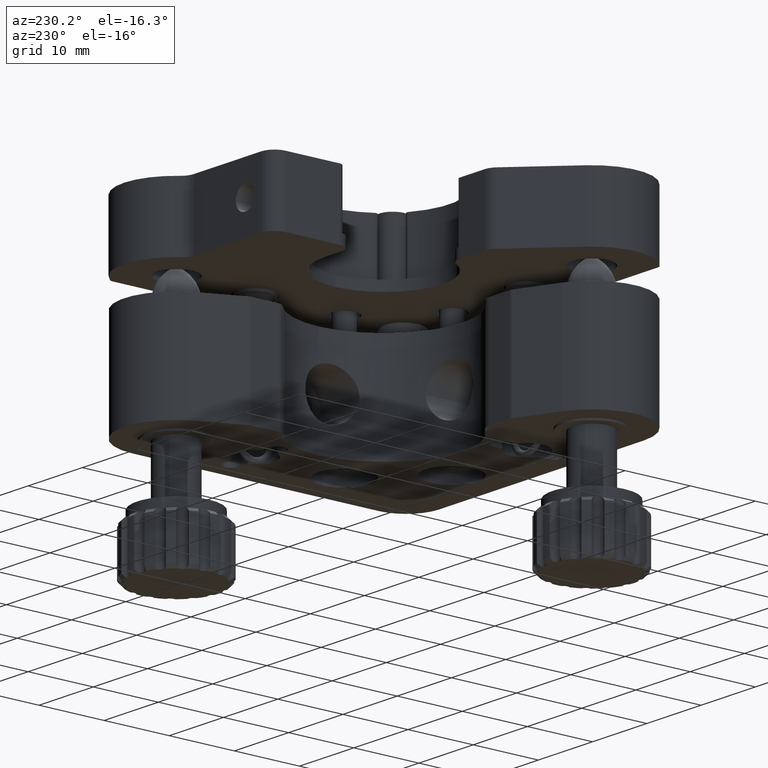
[diagram: clean part render]
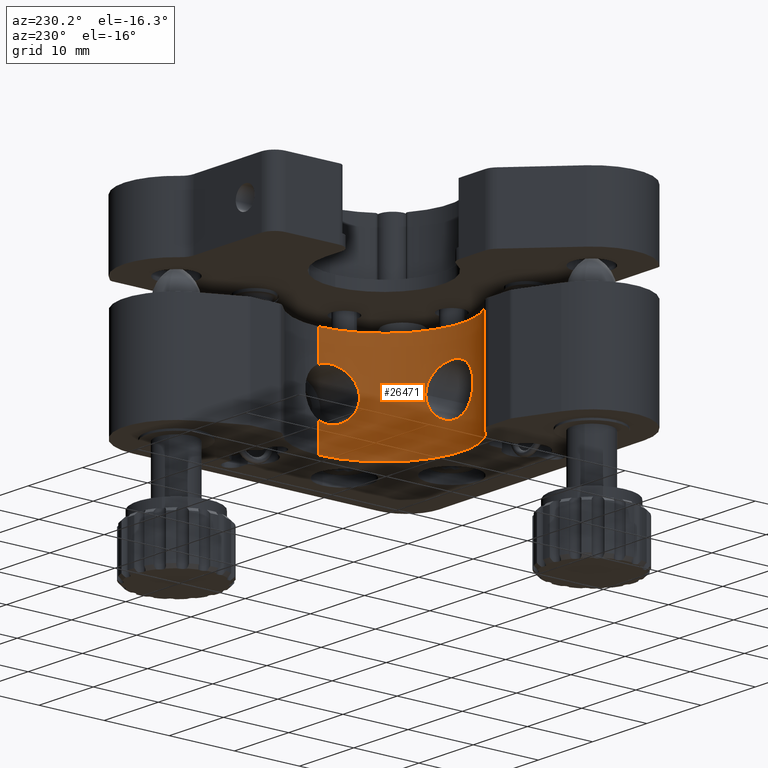
[diagram: same view with one face highlighted and labeled with its STEP entity id]
A machine part, auxiliary view. The second image highlights one B-rep face of the part: STEP entity #26471.
In plain terms, the highlighted cylindrical surface (partial cylindrical patch) has radius 12 mm, axis along (0, 0, -1).
Its self-contained STEP definition (entity closure, byte-faithful):
#66 = CARTESIAN_POINT ( 'NONE',  ( -4.643878865535581800, -11.85733820049159300, 37.19467789922170200 ) ) ;
#182 = CARTESIAN_POINT ( 'NONE',  ( -0.2783170710187705700, -11.40149853859288800, 37.58641778298110800 ) ) ;
#513 = VERTEX_POINT ( 'NONE', #658 ) ;
#658 = CARTESIAN_POINT ( 'NONE',  ( 8.218023132011634100, -1.394161146523007000, 30.41161499869942700 ) ) ;
#806 = EDGE_CURVE ( 'NONE', #21082, #36064, #34638, .T. ) ;
#1142 = CARTESIAN_POINT ( 'NONE',  ( 8.312142232220976400, 0.1058388534769914000, 30.72468322748255100 ) ) ;
#1184 = CARTESIAN_POINT ( 'NONE',  ( 8.312142232220976400, 0.1058388534769909300, 42.20000000000000300 ) ) ;
#1376 = EDGE_CURVE ( 'NONE', #29468, #12259, #23644, .T. ) ;
#2377 = CARTESIAN_POINT ( 'NONE',  ( 7.336063210757995300, -4.637077275361467500, 32.26268045794734000 ) ) ;
#2499 = CARTESIAN_POINT ( 'NONE',  ( 7.511512587963668600, -4.207833955792375800, 36.65252081499707500 ) ) ;
#2888 = CARTESIAN_POINT ( 'NONE',  ( -4.036467097430192800, -11.89087412579092600, 37.62199740758321600 ) ) ;
#3017 = CARTESIAN_POINT ( 'NONE',  ( 0.3044613395920334800, -11.21200975868815400, 37.16213357706076400 ) ) ;
#3208 = CARTESIAN_POINT ( 'NONE',  ( 8.312142232220976400, 0.1058388534769909300, 42.20000000000000300 ) ) ;
#3389 = EDGE_LOOP ( 'NONE', ( #14224, #4186 ) ) ;
#3926 = VERTEX_POINT ( 'NONE', #8734 ) ;
#4074 = CARTESIAN_POINT ( 'NONE',  ( 1.562142232220977500, -10.68478207397662800, 34.35000000000000900 ) ) ;
#4186 = ORIENTED_EDGE ( 'NONE', *, *, #15602, .F. ) ;
#4243 = EDGE_CURVE ( 'NONE', #12259, #25881, #29855, .T. ) ;
#4659 = CARTESIAN_POINT ( 'NONE',  ( -5.937857767779021000, -11.68133638064929200, 34.35000000000000900 ) ) ;
#4784 = CARTESIAN_POINT ( 'NONE',  ( 1.562142232220977300, -10.68478207397663100, 34.09929167911808900 ) ) ;
#5080 = CARTESIAN_POINT ( 'NONE',  ( 8.186418436619622000, -1.645015639330673000, 30.41161499869942700 ) ) ;
#5207 = CARTESIAN_POINT ( 'NONE',  ( 7.197919115906020500, -4.944978787620370600, 32.93111071557029800 ) ) ;
#5324 = CARTESIAN_POINT ( 'NONE',  ( 7.702358405906163200, -3.676694995723489300, 37.14678317438245600 ) ) ;
#5466 = CARTESIAN_POINT ( 'NONE',  ( -5.937857767779023600, -11.68133638064929000, 34.59685783447101000 ) ) ;
#5704 = CARTESIAN_POINT ( 'NONE',  ( -3.352078393020536700, -11.89170171295913100, 37.92343765261636400 ) ) ;
#5834 = CARTESIAN_POINT ( 'NONE',  ( 0.7965245294339163800, -11.02571217559959600, 36.63347815999236400 ) ) ;
#6818 = B_SPLINE_CURVE_WITH_KNOTS ( 'NONE', 3,
 ( #19524, #5466, #8413, #27955, #11236, #30765, #14045, #33558, #16842, #66, #19655, #2888, #22494, #5704, #25284, #8537, #28074, #11365, #30875, #14162, #33682, #16960, #182, #19774, #3017, #22612, #5834, #25413, #8658, #28199, #11476, #30992, #14283, #33795 ),
 .UNSPECIFIED., .F., .F.,
 ( 4, 2, 2, 2, 2, 2, 2, 2, 2, 2, 2, 2, 2, 2, 2, 2, 4 ),
 ( 0.01185075788368171300, 0.01259133330468801900, 0.01333190872569432600, 0.01407248414670063000, 0.01481305956770693700, 0.01555363498871324300, 0.01629421040971955000, 0.01703478583072585300, 0.01777536125173215900, 0.01851593667273846200, 0.01925651209374476500, 0.01999708751475107200, 0.02073766293575737100, 0.02147823835676367800, 0.02221881377776998400, 0.02295938919877628700, 0.02369996461978259000 ),
 .UNSPECIFIED. ) ;
#6823 = CARTESIAN_POINT ( 'NONE',  ( 8.305011582589891400, -0.3785139108889240000, 30.54264062238669900 ) ) ;
#7206 = CARTESIAN_POINT ( 'NONE',  ( -0.9337895554496713500, -11.57607597982115900, 30.80774386421781200 ) ) ;
#7517 = CARTESIAN_POINT ( 'NONE',  ( 0.7947189985485514400, -11.02645010355367500, 32.06403797402140300 ) ) ;
#7924 = CARTESIAN_POINT ( 'NONE',  ( 8.147473116232706800, -1.890337057740245200, 30.43652132105739800 ) ) ;
#8038 = CARTESIAN_POINT ( 'NONE',  ( 7.115095796240678900, -5.119032388729229900, 33.66056372981974200 ) ) ;
#8154 = CARTESIAN_POINT ( 'NONE',  ( 7.890424800489048700, -3.055947593953199300, 37.53206690726232600 ) ) ;
#8413 = CARTESIAN_POINT ( 'NONE',  ( -5.913259980314201400, -11.68611107790871500, 34.84589520719856600 ) ) ;
#8537 = CARTESIAN_POINT ( 'NONE',  ( -2.629827805160137800, -11.84989814947614700, 38.08202234590049100 ) ) ;
#8628 = EDGE_CURVE ( 'NONE', #17608, #15918, #29043, .T. ) ;
#8658 = CARTESIAN_POINT ( 'NONE',  ( 1.178930897721646200, -10.86343646659487000, 36.01932920367370600 ) ) ;
#8734 = CARTESIAN_POINT ( 'NONE',  ( 8.312142232220976400, 0.1058388534769909300, 42.20000000000000300 ) ) ;
#8807 = DIRECTION ( 'NONE',  ( 0.0000000000000000000, 0.0000000000000000000, -1.000000000000000000 ) ) ;
#8887 = B_SPLINE_CURVE_WITH_KNOTS ( 'NONE', 3,
 ( #32934, #5080, #7924, #27449, #10731, #30251, #13554, #33053, #16345, #35860, #19149, #2377, #22000, #5207, #24767, #8038, #27572, #10853, #30376, #13671, #33175, #16465, #35980, #19266, #2499, #22120, #5324, #24895, #8154, #27692, #10980, #30489, #13784, #33284 ),
 .UNSPECIFIED., .F., .F.,
 ( 4, 2, 2, 2, 2, 2, 2, 2, 2, 2, 2, 2, 2, 2, 2, 2, 4 ),
 ( 0.0000000000000000000, 0.0007471794281906267800, 0.001494358856381252900, 0.002241538284571879500, 0.002988717712762505800, 0.003735897140953133000, 0.004483076569143759800, 0.005230255997334386600, 0.005977435425525013400, 0.006724614853715640100, 0.007471794281906266900, 0.008218973710096893700, 0.008966153138287521300, 0.009713332566478149000, 0.01046051199466877700, 0.01120769142285940400, 0.01195487085105003200 ),
 .UNSPECIFIED. ) ;
#9171 = ORIENTED_EDGE ( 'NONE', *, *, #14606, .F. ) ;
#9401 = CARTESIAN_POINT ( 'NONE',  ( -12.50227082543751300, -8.037018289380148100, 42.20000000000000300 ) ) ;
#9615 = CARTESIAN_POINT ( 'NONE',  ( 8.250490663916513900, -1.136458101209888200, 30.41161499869942700 ) ) ;
#9706 = EDGE_CURVE ( 'NONE', #513, #17608, #8887, .T. ) ;
#9793 = CARTESIAN_POINT ( 'NONE',  ( 8.218023132011635900, -1.394161146523006800, 37.91161499869942700 ) ) ;
#9824 = CARTESIAN_POINT ( 'NONE',  ( -5.814943237720099100, -11.70424195154715500, 33.36568510149596300 ) ) ;
#10177 = CARTESIAN_POINT ( 'NONE',  ( 0.6406477355106960900, -11.08774728982293900, 31.87627768447960700 ) ) ;
#10294 = CARTESIAN_POINT ( 'NONE',  ( -5.742378678244329600, -11.71737016422162000, 33.12984066133203200 ) ) ;
#10381 = CARTESIAN_POINT ( 'NONE',  ( -5.937857767779021000, -11.68133638064929200, 34.35000000000000900 ) ) ;
#10511 = CARTESIAN_POINT ( 'NONE',  ( -3.350909372271621200, -11.89166454056646500, 30.77620164976155700 ) ) ;
#10551 = LINE ( 'NONE', #3208, #17955 ) ;
#10606 = CARTESIAN_POINT ( 'NONE',  ( -3.814019618674013400, -11.89573208947452400, 30.96173771417064600 ) ) ;
#10675 = CARTESIAN_POINT ( 'NONE',  ( -1.887129911017639200, -11.76086130799270400, 30.60403666454266200 ) ) ;
#10731 = CARTESIAN_POINT ( 'NONE',  ( 8.003494875095901400, -2.608262870812358500, 30.60520218119765800 ) ) ;
#10853 = CARTESIAN_POINT ( 'NONE',  ( 7.102632949428027600, -5.144428775121521200, 34.40674459996284200 ) ) ;
#10904 = VERTEX_POINT ( 'NONE', #9401 ) ;
#10980 = CARTESIAN_POINT ( 'NONE',  ( 8.055608786549765200, -2.374431960167835000, 37.78964052553418200 ) ) ;
#11236 = CARTESIAN_POINT ( 'NONE',  ( -5.742409049358235200, -11.71736578486106800, 35.57012130119655100 ) ) ;
#11365 = CARTESIAN_POINT ( 'NONE',  ( -1.887809713376569900, -11.76097457001802700, 38.09604952177880200 ) ) ;
#11397 = CARTESIAN_POINT ( 'NONE',  ( 8.312142232220976400, 0.1058388534769913000, 37.59854676991631100 ) ) ;
#11470 = EDGE_CURVE ( 'NONE', #29468, #513, #27122, .T. ) ;
#11476 = CARTESIAN_POINT ( 'NONE',  ( 1.440214767931661700, -10.74338986590339600, 35.32994684401631200 ) ) ;
#12042 = CARTESIAN_POINT ( 'NONE',  ( 0.1177198611003903400, -11.27666552521672600, 31.38267009824701500 ) ) ;
#12259 = VERTEX_POINT ( 'NONE', #36058 ) ;
#12612 = CARTESIAN_POINT ( 'NONE',  ( 8.305203216990907600, -0.3750201636311180100, 37.77978415463439200 ) ) ;
#12938 = VECTOR ( 'NONE', #18483, 1000.000000000000000 ) ;
#13027 = AXIS2_PLACEMENT_3D ( 'NONE', #18598, #29718, #29833 ) ;
#13554 = CARTESIAN_POINT ( 'NONE',  ( 7.828755841380758100, -3.272356124835002200, 30.90684148386549200 ) ) ;
#13671 = CARTESIAN_POINT ( 'NONE',  ( 7.162230149174838800, -5.020425706848840300, 35.14894624159540400 ) ) ;
#13784 = CARTESIAN_POINT ( 'NONE',  ( 8.186903416983136900, -1.641166227032807800, 37.91161499869942000 ) ) ;
#13797 = EDGE_LOOP ( 'NONE', ( #23270, #31307, #25719, #22107, #26049, #27850, #28678, #9171 ) ) ;
#14045 = CARTESIAN_POINT ( 'NONE',  ( -5.431840749838316100, -11.76757751758255700, 36.24737055289207200 ) ) ;
#14162 = CARTESIAN_POINT ( 'NONE',  ( -1.166823856844398300, -11.62888652519902300, 37.96660545454933100 ) ) ;
#14224 = ORIENTED_EDGE ( 'NONE', *, *, #806, .F. ) ;
#14283 = CARTESIAN_POINT ( 'NONE',  ( 1.562142232220977300, -10.68478207397662800, 34.60067550563001500 ) ) ;
#14606 = EDGE_CURVE ( 'NONE', #10904, #25881, #26922, .T. ) ;
#14686 = CIRCLE ( 'NONE', #15600, 12.00000000000000000 ) ;
#14704 = CARTESIAN_POINT ( 'NONE',  ( -3.687857767779023600, 0.1058388534769909300, 42.20000000000000300 ) ) ;
#14982 = CARTESIAN_POINT ( 'NONE',  ( 8.312142232220976400, 0.1058388534769914000, 30.72468322748255100 ) ) ;
#15148 = CARTESIAN_POINT ( 'NONE',  ( -2.628413627840432200, -11.84977597828298800, 30.61780150787423300 ) ) ;
#15268 = CARTESIAN_POINT ( 'NONE',  ( -3.113692316621387700, -11.88288426142337300, 30.70771700184757300 ) ) ;
#15313 = CARTESIAN_POINT ( 'NONE',  ( 8.250091924806602300, -1.139622994778351800, 37.91161499869942700 ) ) ;
#15382 = CARTESIAN_POINT ( 'NONE',  ( 1.064463316985862400, -10.91399763333831000, 32.46750322368217900 ) ) ;
#15424 = CARTESIAN_POINT ( 'NONE',  ( 8.312142232220976400, 0.1058388534769913000, 37.59854676991631100 ) ) ;
#15456 = CARTESIAN_POINT ( 'NONE',  ( -0.4918476764795914300, -11.46297895072869700, 30.99682010878152700 ) ) ;
#15527 = CARTESIAN_POINT ( 'NONE',  ( -1.168393606014416900, -11.62920670449719700, 30.73300767907704800 ) ) ;
#15600 = AXIS2_PLACEMENT_3D ( 'NONE', #14704, #34190, #17480 ) ;
#15602 = EDGE_CURVE ( 'NONE', #36064, #21082, #6818, .T. ) ;
#15918 = VERTEX_POINT ( 'NONE', #11397 ) ;
#15998 = CARTESIAN_POINT ( 'NONE',  ( -4.997602406341004100, -11.82379244051122700, 31.85410844161208000 ) ) ;
#16345 = CARTESIAN_POINT ( 'NONE',  ( 7.637341433815574700, -3.865704204367970100, 31.33102623391109600 ) ) ;
#16465 = CARTESIAN_POINT ( 'NONE',  ( 7.283948171544218500, -4.755294400519731300, 35.84294593349233100 ) ) ;
#16842 = CARTESIAN_POINT ( 'NONE',  ( -4.997715325141560200, -11.82378204340722200, 36.84578294133890400 ) ) ;
#16960 = CARTESIAN_POINT ( 'NONE',  ( -0.4907667545154483800, -11.46268598084195000, 37.70265621218094800 ) ) ;
#17161 = DIRECTION ( 'NONE',  ( 1.000000000000000000, 0.0000000000000000000, 0.0000000000000000000 ) ) ;
#17180 = FACE_OUTER_BOUND ( 'NONE', #13797, .T. ) ;
#17480 = DIRECTION ( 'NONE',  ( 1.000000000000000000, 0.0000000000000000000, 0.0000000000000000000 ) ) ;
#17608 = VERTEX_POINT ( 'NONE', #20656 ) ;
#17735 = AXIS2_PLACEMENT_3D ( 'NONE', #22918, #8807, #17161 ) ;
#17920 = CARTESIAN_POINT ( 'NONE',  ( 8.312142232220974600, -0.1290420833775358900, 30.62217278248845200 ) ) ;
#17955 = VECTOR ( 'NONE', #19968, 1000.000000000000000 ) ;
#18483 = DIRECTION ( 'NONE',  ( 0.0000000000000000000, 0.0000000000000000000, -1.000000000000000000 ) ) ;
#18598 = CARTESIAN_POINT ( 'NONE',  ( -3.687857767779023600, 0.1058388534769909300, 42.20000000000000300 ) ) ;
#19149 = CARTESIAN_POINT ( 'NONE',  ( 7.450143965642670500, -4.362606573348760900, 31.85710004828160900 ) ) ;
#19266 = CARTESIAN_POINT ( 'NONE',  ( 7.449188982565381400, -4.364951317606593100, 36.46294583958331300 ) ) ;
#19333 = CARTESIAN_POINT ( 'NONE',  ( -5.155074889985630000, -11.80494666306023700, 32.04365812353998400 ) ) ;
#19524 = CARTESIAN_POINT ( 'NONE',  ( -5.937857767779021000, -11.68133638064929200, 34.35000000000000900 ) ) ;
#19655 = CARTESIAN_POINT ( 'NONE',  ( -4.449066510383006300, -11.87177409826921000, 37.35170926494820500 ) ) ;
#19774 = CARTESIAN_POINT ( 'NONE',  ( 0.1207886319627203700, -11.27563707100346800, 37.31494477849747700 ) ) ;
#19909 = CARTESIAN_POINT ( 'NONE',  ( 1.179048562526454800, -10.86338613231449000, 32.68082217770555100 ) ) ;
#19968 = DIRECTION ( 'NONE',  ( 0.0000000000000000000, 0.0000000000000000000, -1.000000000000000000 ) ) ;
#19984 = CARTESIAN_POINT ( 'NONE',  ( -5.913308940433944700, -11.68610196624234600, 33.85438080561911500 ) ) ;
#20467 = CARTESIAN_POINT ( 'NONE',  ( 1.562142232220977500, -10.68478207397662800, 34.35000000000000900 ) ) ;
#20656 = CARTESIAN_POINT ( 'NONE',  ( 8.218023132011635900, -1.394161146523006800, 37.91161499869942700 ) ) ;
#21082 = VERTEX_POINT ( 'NONE', #20467 ) ;
#21612 = CARTESIAN_POINT ( 'NONE',  ( -12.50227082543751300, -8.037018289380148100, 26.39999999999999900 ) ) ;
#22000 = CARTESIAN_POINT ( 'NONE',  ( 7.284140566353624300, -4.754834943516831600, 32.47985451000713700 ) ) ;
#22107 = ORIENTED_EDGE ( 'NONE', *, *, #9706, .F. ) ;
#22120 = CARTESIAN_POINT ( 'NONE',  ( 7.638166843807851200, -3.863397341088217200, 36.99432378689782300 ) ) ;
#22494 = CARTESIAN_POINT ( 'NONE',  ( -3.815644554659562500, -11.89571929406753800, 37.73750298860846900 ) ) ;
#22612 = CARTESIAN_POINT ( 'NONE',  ( 0.6416528199308613200, -11.08735761285364200, 36.82257348166582700 ) ) ;
#22918 = CARTESIAN_POINT ( 'NONE',  ( -3.687857767779023600, 0.1058388534769909300, 26.39999999999999900 ) ) ;
#23081 = CARTESIAN_POINT ( 'NONE',  ( -2.377702640342678600, -11.82499041687942800, 30.59678304933165900 ) ) ;
#23156 = CARTESIAN_POINT ( 'NONE',  ( -5.937857767779020100, -11.68133638064929300, 34.10310985003808100 ) ) ;
#23270 = ORIENTED_EDGE ( 'NONE', *, *, #35240, .F. ) ;
#23327 = CARTESIAN_POINT ( 'NONE',  ( -4.035598879372848600, -11.89090482672031400, 31.07748554615720900 ) ) ;
#23644 = LINE ( 'NONE', #1184, #31039 ) ;
#24767 = CARTESIAN_POINT ( 'NONE',  ( 7.163000770967727200, -5.018803004848944500, 33.16778928765530300 ) ) ;
#24895 = CARTESIAN_POINT ( 'NONE',  ( 7.828383240493048200, -3.273625577911462700, 37.41565913807466600 ) ) ;
#25252 = CARTESIAN_POINT ( 'NONE',  ( -4.448837332437380000, -11.87179417276066200, 31.34808902958779300 ) ) ;
#25284 = CARTESIAN_POINT ( 'NONE',  ( -3.114809589342764100, -11.88293466472632400, 37.99198965192695000 ) ) ;
#25413 = CARTESIAN_POINT ( 'NONE',  ( 1.064744462186853400, -10.91386554111618800, 36.23185784178856700 ) ) ;
#25719 = ORIENTED_EDGE ( 'NONE', *, *, #8628, .F. ) ;
#25881 = VERTEX_POINT ( 'NONE', #21612 ) ;
#26049 = ORIENTED_EDGE ( 'NONE', *, *, #11470, .F. ) ;
#26372 = CARTESIAN_POINT ( 'NONE',  ( 8.274101795508114400, -0.8816003910593023200, 30.43793451890289600 ) ) ;
#26409 = DIRECTION ( 'NONE',  ( 0.0000000000000000000, 0.0000000000000000000, -1.000000000000000000 ) ) ;
#26471 = ADVANCED_FACE ( 'NONE', ( #31156, #17180 ), #35065, .F. ) ;
#26750 = CARTESIAN_POINT ( 'NONE',  ( -4.644033516521969500, -11.85732384566995300, 31.50547186752407900 ) ) ;
#26878 = CARTESIAN_POINT ( 'NONE',  ( -5.551811099809253100, -11.74890726880426300, 32.67452224885063600 ) ) ;
#26922 = LINE ( 'NONE', #29614, #12938 ) ;
#26962 = CARTESIAN_POINT ( 'NONE',  ( -5.432115480440579300, -11.76753904569180200, 32.45305978078771100 ) ) ;
#27122 = B_SPLINE_CURVE_WITH_KNOTS ( 'NONE', 3,
 ( #1142, #17920, #6823, #26372, #9615, #29169 ),
 .UNSPECIFIED., .F., .F.,
 ( 4, 2, 4 ),
 ( 0.02215122032345130700, 0.02291879841976099000, 0.02368637651607067400 ),
 .UNSPECIFIED. ) ;
#27449 = CARTESIAN_POINT ( 'NONE',  ( 8.056344217656237200, -2.370750560992876700, 30.53273272482688200 ) ) ;
#27572 = CARTESIAN_POINT ( 'NONE',  ( 7.102895509127756100, -5.143889121091460100, 33.90836428444920600 ) ) ;
#27692 = CARTESIAN_POINT ( 'NONE',  ( 8.003686934916896000, -2.607333318479021900, 37.71825576577015900 ) ) ;
#27850 = ORIENTED_EDGE ( 'NONE', *, *, #1376, .T. ) ;
#27955 = CARTESIAN_POINT ( 'NONE',  ( -5.814953763512802400, -11.70423992766571100, 35.33422982042635900 ) ) ;
#28074 = CARTESIAN_POINT ( 'NONE',  ( -2.379350953476134100, -11.82518137712870600, 38.10316482643667500 ) ) ;
#28199 = CARTESIAN_POINT ( 'NONE',  ( 1.366716737184506800, -10.77818198148818700, 35.56939575079007900 ) ) ;
#28678 = ORIENTED_EDGE ( 'NONE', *, *, #4243, .T. ) ;
#29043 = B_SPLINE_CURVE_WITH_KNOTS ( 'NONE', 3,
 ( #9793, #15313, #29345, #12612, #32142, #15424 ),
 .UNSPECIFIED., .F., .F.,
 ( 4, 2, 4 ),
 ( 0.01195487085105003200, 0.01272483748607122400, 0.01349480412109241800 ),
 .UNSPECIFIED. ) ;
#29169 = CARTESIAN_POINT ( 'NONE',  ( 8.218023132011634100, -1.394161146523007000, 30.41161499869942700 ) ) ;
#29345 = CARTESIAN_POINT ( 'NONE',  ( 8.274042706059624700, -0.8829352525369655900, 37.88565104434764000 ) ) ;
#29468 = VERTEX_POINT ( 'NONE', #14982 ) ;
#29614 = CARTESIAN_POINT ( 'NONE',  ( -12.50227082543751300, -8.037018289380148100, 42.20000000000000300 ) ) ;
#29718 = DIRECTION ( 'NONE',  ( 0.0000000000000000000, 0.0000000000000000000, -1.000000000000000000 ) ) ;
#29833 = DIRECTION ( 'NONE',  ( 1.000000000000000000, 0.0000000000000000000, 0.0000000000000000000 ) ) ;
#29855 = CIRCLE ( 'NONE', #17735, 12.00000000000000000 ) ;
#30251 = CARTESIAN_POINT ( 'NONE',  ( 7.889567522407041600, -3.059172748398904900, 30.79266093385498900 ) ) ;
#30370 = CARTESIAN_POINT ( 'NONE',  ( -1.645310162419591200, -11.72154433935085100, 30.63145421936792100 ) ) ;
#30376 = CARTESIAN_POINT ( 'NONE',  ( 7.115013498305602400, -5.119194022638142300, 34.66036114308057800 ) ) ;
#30489 = CARTESIAN_POINT ( 'NONE',  ( 8.147548984489709800, -1.890131344198534100, 37.88686850074008600 ) ) ;
#30765 = CARTESIAN_POINT ( 'NONE',  ( -5.551624405531507400, -11.74893751761741000, 36.02588925939435400 ) ) ;
#30875 = CARTESIAN_POINT ( 'NONE',  ( -1.645339525440803000, -11.72156622636790500, 38.06860447182604900 ) ) ;
#30992 = CARTESIAN_POINT ( 'NONE',  ( 1.537242842907092300, -10.69699481853453100, 34.84682147874423200 ) ) ;
#31039 = VECTOR ( 'NONE', #26409, 1000.000000000000000 ) ;
#31156 = FACE_BOUND ( 'NONE', #3389, .T. ) ;
#31307 = ORIENTED_EDGE ( 'NONE', *, *, #32693, .T. ) ;
#31442 = CARTESIAN_POINT ( 'NONE',  ( 1.440447953322894900, -10.74327905216118700, 33.37100269422021600 ) ) ;
#32096 = CARTESIAN_POINT ( 'NONE',  ( -0.2816278103882037800, -11.40248094125335900, 31.11163277280473900 ) ) ;
#32142 = CARTESIAN_POINT ( 'NONE',  ( 8.312142232220978100, -0.1301400538820448900, 37.70153640852446800 ) ) ;
#32693 = EDGE_CURVE ( 'NONE', #3926, #15918, #10551, .T. ) ;
#32934 = CARTESIAN_POINT ( 'NONE',  ( 8.218023132011634100, -1.394161146523007000, 30.41161499869942700 ) ) ;
#33053 = CARTESIAN_POINT ( 'NONE',  ( 7.702770170820048000, -3.675455303102584700, 31.17550314872180600 ) ) ;
#33175 = CARTESIAN_POINT ( 'NONE',  ( 7.196736668678160400, -4.947550705732441900, 35.38534417785452000 ) ) ;
#33284 = CARTESIAN_POINT ( 'NONE',  ( 8.218023132011635900, -1.394161146523006800, 37.91161499869942700 ) ) ;
#33558 = CARTESIAN_POINT ( 'NONE',  ( -5.155117194986037700, -11.80493957345756000, 36.65625499338720100 ) ) ;
#33682 = CARTESIAN_POINT ( 'NONE',  ( -0.9332606543010988400, -11.57595692164953000, 37.89209086095039000 ) ) ;
#33795 = CARTESIAN_POINT ( 'NONE',  ( 1.562142232220977500, -10.68478207397662800, 34.35000000000000900 ) ) ;
#34190 = DIRECTION ( 'NONE',  ( 0.0000000000000000000, 0.0000000000000000000, -1.000000000000000000 ) ) ;
#34638 = B_SPLINE_CURVE_WITH_KNOTS ( 'NONE', 3,
 ( #4074, #4784, #35509, #31442, #35365, #19909, #15382, #7517, #10177, #35755, #12042, #32096, #15456, #7206, #15527, #30370, #10675, #23081, #15148, #15268, #10511, #10606, #23327, #25252, #26750, #15998, #19333, #26962, #26878, #10294, #9824, #19984, #23156, #4659 ),
 .UNSPECIFIED., .F., .F.,
 ( 4, 2, 2, 2, 2, 2, 2, 2, 2, 2, 2, 2, 2, 2, 2, 2, 4 ),
 ( 0.0000000000000000000, 0.0007406723677301035800, 0.001481344735460207200, 0.002222017103190310600, 0.002962689470920413900, 0.003703361838650517600, 0.004444034206380625600, 0.005184706574110734500, 0.005925378941840843400, 0.006666051309570951400, 0.007406723677301061200, 0.008147396045031169200, 0.008888068412761277300, 0.009628740780491387000, 0.01036941314822149700, 0.01111008551595160700, 0.01185075788368171300 ),
 .UNSPECIFIED. ) ;
#35065 = CYLINDRICAL_SURFACE ( 'NONE', #13027, 12.00000000000000000 ) ;
#35240 = EDGE_CURVE ( 'NONE', #3926, #10904, #14686, .T. ) ;
#35365 = CARTESIAN_POINT ( 'NONE',  ( 1.367194254116249400, -10.77796209439100600, 33.13187933228718400 ) ) ;
#35509 = CARTESIAN_POINT ( 'NONE',  ( 1.537259883285679600, -10.69698598228044300, 33.85347546260916100 ) ) ;
#35755 = CARTESIAN_POINT ( 'NONE',  ( 0.3033318608860453000, -11.21240906691784500, 31.53686656724653000 ) ) ;
#35860 = CARTESIAN_POINT ( 'NONE',  ( 7.511360201849649700, -4.208185727452241800, 31.67122878366095800 ) ) ;
#35980 = CARTESIAN_POINT ( 'NONE',  ( 7.335883461832639600, -4.637462146435873400, 36.05969732140684400 ) ) ;
#36058 = CARTESIAN_POINT ( 'NONE',  ( 8.312142232220976400, 0.1058388534769909300, 26.39999999999999900 ) ) ;
#36064 = VERTEX_POINT ( 'NONE', #10381 ) ;